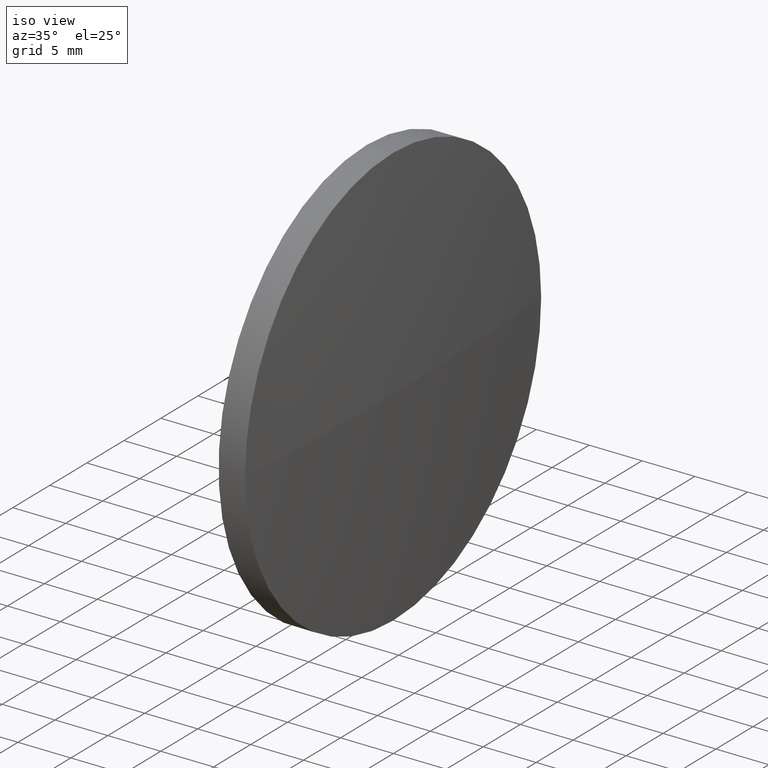
[diagram: clean part render]
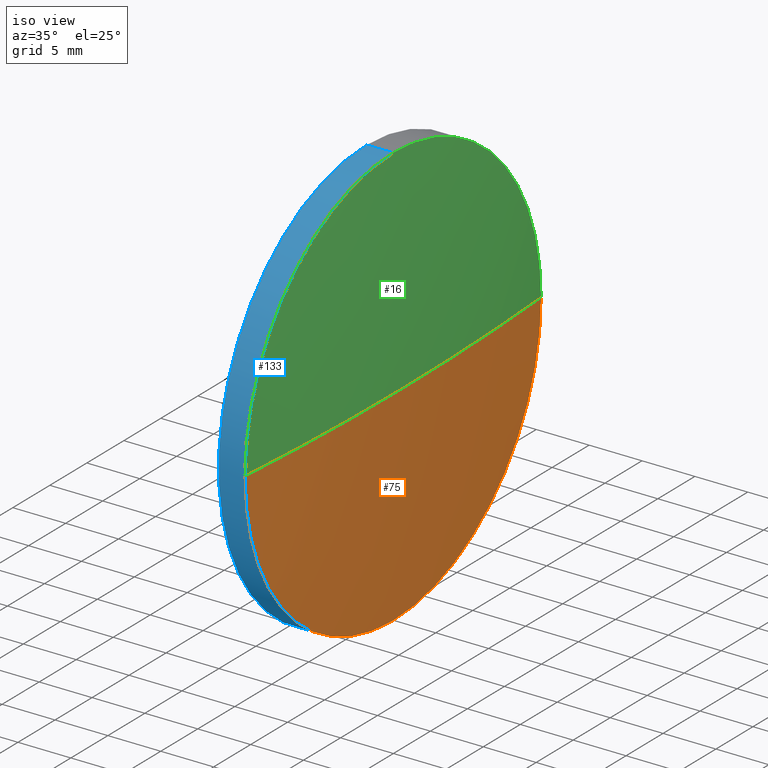
[diagram: same view with three faces highlighted in distinct colors, each labeled with its STEP entity id]
A machine part, iso view with three faces highlighted in distinct colors.
Their STEP definitions:

[orange] entity #75 — the highlighted spherical surface has radius 256.8 mm.
#3 = CARTESIAN_POINT ( 'NONE',  ( 176.0471157877914800, 108.4341461141712300, 0.0000000000000000000 ) ) ;
#8 = CIRCLE ( 'NONE', #140, 256.8002564102557700 ) ;
#18 = CARTESIAN_POINT ( 'NONE',  ( 432.0673721980472200, 108.4341461141712000, -20.00000000000000400 ) ) ;
#19 = ORIENTED_EDGE ( 'NONE', *, *, #62, .T. ) ;
#20 = DIRECTION ( 'NONE',  ( 0.0000000000000000000, -1.000000000000000000, 0.0000000000000000000 ) ) ;
#23 = EDGE_CURVE ( 'NONE', #141, #31, #8, .T. ) ;
#27 = VERTEX_POINT ( 'NONE', #18 ) ;
#31 = VERTEX_POINT ( 'NONE', #64 ) ;
#32 = CIRCLE ( 'NONE', #183, 256.8002564102557700 ) ;
#34 = DIRECTION ( 'NONE',  ( 0.0000000000000000000, 0.0000000000000000000, 1.000000000000000000 ) ) ;
#49 = ORIENTED_EDGE ( 'NONE', *, *, #115, .F. ) ;
#51 = DIRECTION ( 'NONE',  ( -1.000000000000000000, 0.0000000000000000000, 0.0000000000000000000 ) ) ;
#52 = DIRECTION ( 'NONE',  ( 0.0000000000000000000, -1.224646799147353200E-016, 1.000000000000000000 ) ) ;
#54 = EDGE_LOOP ( 'NONE', ( #122, #19, #49, #173 ) ) ;
#62 = EDGE_CURVE ( 'NONE', #141, #181, #32, .T. ) ;
#63 = CARTESIAN_POINT ( 'NONE',  ( 432.0673721980472200, 108.4341461141712000, 0.0000000000000000000 ) ) ;
#64 = CARTESIAN_POINT ( 'NONE',  ( 432.0673721980472200, 128.4341461141713700, 2.449293598294722300E-015 ) ) ;
#75 = ADVANCED_FACE ( 'NONE', ( #121 ), #92, .T. ) ;
#77 = CARTESIAN_POINT ( 'NONE',  ( 432.0673721980472200, 108.4341461141712000, 0.0000000000000000000 ) ) ;
#78 = DIRECTION ( 'NONE',  ( 0.0000000000000000000, 0.0000000000000000000, 1.000000000000000000 ) ) ;
#79 = CIRCLE ( 'NONE', #101, 20.00000000000000400 ) ;
#84 = EDGE_CURVE ( 'NONE', #31, #27, #134, .T. ) ;
#92 = SPHERICAL_SURFACE ( 'NONE', #98, 256.8002564102557700 ) ;
#94 = DIRECTION ( 'NONE',  ( -1.000000000000000000, -0.0000000000000000000, -0.0000000000000000000 ) ) ;
#98 = AXIS2_PLACEMENT_3D ( 'NONE', #153, #128, #20 ) ;
#101 = AXIS2_PLACEMENT_3D ( 'NONE', #77, #109, #34 ) ;
#108 = AXIS2_PLACEMENT_3D ( 'NONE', #63, #94, #78 ) ;
#109 = DIRECTION ( 'NONE',  ( -1.000000000000000000, -0.0000000000000000000, -0.0000000000000000000 ) ) ;
#115 = EDGE_CURVE ( 'NONE', #27, #181, #79, .T. ) ;
#121 = FACE_OUTER_BOUND ( 'NONE', #54, .T. ) ;
#122 = ORIENTED_EDGE ( 'NONE', *, *, #23, .F. ) ;
#128 = DIRECTION ( 'NONE',  ( 0.0000000000000000000, 0.0000000000000000000, 1.000000000000000000 ) ) ;
#134 = CIRCLE ( 'NONE', #108, 20.00000000000000400 ) ;
#140 = AXIS2_PLACEMENT_3D ( 'NONE', #162, #52, #178 ) ;
#141 = VERTEX_POINT ( 'NONE', #179 ) ;
#142 = CARTESIAN_POINT ( 'NONE',  ( 432.0673721980472200, 88.43414611417107100, 0.0000000000000000000 ) ) ;
#153 = CARTESIAN_POINT ( 'NONE',  ( 176.0471157877914800, 108.4341461141712300, 0.0000000000000000000 ) ) ;
#161 = DIRECTION ( 'NONE',  ( 0.0000000000000000000, 0.0000000000000000000, -1.000000000000000000 ) ) ;
#162 = CARTESIAN_POINT ( 'NONE',  ( 176.0471157877914800, 108.4341461141712300, 0.0000000000000000000 ) ) ;
#173 = ORIENTED_EDGE ( 'NONE', *, *, #84, .F. ) ;
#178 = DIRECTION ( 'NONE',  ( 0.0000000000000000000, -1.000000000000000000, -1.224646799147353200E-016 ) ) ;
#179 = CARTESIAN_POINT ( 'NONE',  ( 432.8473721980472500, 108.4341461141712100, 0.0000000000000000000 ) ) ;
#181 = VERTEX_POINT ( 'NONE', #142 ) ;
#183 = AXIS2_PLACEMENT_3D ( 'NONE', #3, #161, #51 ) ;

[blue] entity #133 — the highlighted cylindrical surface (partial cylindrical patch) has radius 20 mm, axis along (-1, -0, -0).
#1 = DIRECTION ( 'NONE',  ( 0.0000000000000000000, 0.0000000000000000000, 1.000000000000000000 ) ) ;
#13 = EDGE_CURVE ( 'NONE', #137, #184, #145, .T. ) ;
#17 = DIRECTION ( 'NONE',  ( -1.000000000000000000, -0.0000000000000000000, -0.0000000000000000000 ) ) ;
#18 = CARTESIAN_POINT ( 'NONE',  ( 432.0673721980472200, 108.4341461141712000, -20.00000000000000400 ) ) ;
#22 = FACE_OUTER_BOUND ( 'NONE', #76, .T. ) ;
#27 = VERTEX_POINT ( 'NONE', #18 ) ;
#30 = AXIS2_PLACEMENT_3D ( 'NONE', #176, #17, #1 ) ;
#34 = DIRECTION ( 'NONE',  ( 0.0000000000000000000, 0.0000000000000000000, 1.000000000000000000 ) ) ;
#38 = CARTESIAN_POINT ( 'NONE',  ( 429.5673721980472200, 108.4341461141712000, -20.00000000000000400 ) ) ;
#45 = LINE ( 'NONE', #138, #96 ) ;
#50 = CARTESIAN_POINT ( 'NONE',  ( 432.0673721980472200, 108.4341461141712000, 20.00000000000000400 ) ) ;
#53 = EDGE_CURVE ( 'NONE', #27, #113, #45, .T. ) ;
#60 = CIRCLE ( 'NONE', #166, 20.00000000000000400 ) ;
#61 = ORIENTED_EDGE ( 'NONE', *, *, #13, .T. ) ;
#65 = ORIENTED_EDGE ( 'NONE', *, *, #71, .T. ) ;
#66 = CARTESIAN_POINT ( 'NONE',  ( 429.5673721980472200, 108.4341461141712000, 0.0000000000000000000 ) ) ;
#69 = ORIENTED_EDGE ( 'NONE', *, *, #88, .F. ) ;
#70 = CARTESIAN_POINT ( 'NONE',  ( 425.6024185870612700, 108.4341461141712000, 20.00000000000000400 ) ) ;
#71 = EDGE_CURVE ( 'NONE', #181, #137, #170, .T. ) ;
#76 = EDGE_LOOP ( 'NONE', ( #177, #155, #65, #61, #69 ) ) ;
#77 = CARTESIAN_POINT ( 'NONE',  ( 432.0673721980472200, 108.4341461141712000, 0.0000000000000000000 ) ) ;
#79 = CIRCLE ( 'NONE', #101, 20.00000000000000400 ) ;
#88 = EDGE_CURVE ( 'NONE', #113, #184, #60, .T. ) ;
#90 = CARTESIAN_POINT ( 'NONE',  ( 432.0673721980472200, 108.4341461141712000, 0.0000000000000000000 ) ) ;
#91 = DIRECTION ( 'NONE',  ( -1.000000000000000000, -0.0000000000000000000, -0.0000000000000000000 ) ) ;
#95 = DIRECTION ( 'NONE',  ( 0.0000000000000000000, 0.0000000000000000000, 1.000000000000000000 ) ) ;
#96 = VECTOR ( 'NONE', #123, 1000.000000000000000 ) ;
#101 = AXIS2_PLACEMENT_3D ( 'NONE', #77, #109, #34 ) ;
#109 = DIRECTION ( 'NONE',  ( -1.000000000000000000, -0.0000000000000000000, -0.0000000000000000000 ) ) ;
#113 = VERTEX_POINT ( 'NONE', #38 ) ;
#114 = AXIS2_PLACEMENT_3D ( 'NONE', #90, #125, #152 ) ;
#115 = EDGE_CURVE ( 'NONE', #27, #181, #79, .T. ) ;
#123 = DIRECTION ( 'NONE',  ( -1.000000000000000000, -0.0000000000000000000, -0.0000000000000000000 ) ) ;
#125 = DIRECTION ( 'NONE',  ( -1.000000000000000000, -0.0000000000000000000, -0.0000000000000000000 ) ) ;
#127 = VECTOR ( 'NONE', #167, 1000.000000000000000 ) ;
#133 = ADVANCED_FACE ( 'NONE', ( #22 ), #150, .T. ) ;
#137 = VERTEX_POINT ( 'NONE', #50 ) ;
#138 = CARTESIAN_POINT ( 'NONE',  ( 425.6024185870612700, 108.4341461141712000, -20.00000000000000400 ) ) ;
#142 = CARTESIAN_POINT ( 'NONE',  ( 432.0673721980472200, 88.43414611417107100, 0.0000000000000000000 ) ) ;
#145 = LINE ( 'NONE', #70, #127 ) ;
#150 = CYLINDRICAL_SURFACE ( 'NONE', #30, 20.00000000000000400 ) ;
#152 = DIRECTION ( 'NONE',  ( 0.0000000000000000000, 0.0000000000000000000, 1.000000000000000000 ) ) ;
#154 = CARTESIAN_POINT ( 'NONE',  ( 429.5673721980472200, 108.4341461141712000, 20.00000000000000400 ) ) ;
#155 = ORIENTED_EDGE ( 'NONE', *, *, #115, .T. ) ;
#166 = AXIS2_PLACEMENT_3D ( 'NONE', #66, #91, #95 ) ;
#167 = DIRECTION ( 'NONE',  ( -1.000000000000000000, -0.0000000000000000000, -0.0000000000000000000 ) ) ;
#170 = CIRCLE ( 'NONE', #114, 20.00000000000000400 ) ;
#176 = CARTESIAN_POINT ( 'NONE',  ( 425.6024185870612700, 108.4341461141712000, 0.0000000000000000000 ) ) ;
#177 = ORIENTED_EDGE ( 'NONE', *, *, #53, .F. ) ;
#181 = VERTEX_POINT ( 'NONE', #142 ) ;
#184 = VERTEX_POINT ( 'NONE', #154 ) ;

[green] entity #16 — the highlighted spherical surface has radius 256.8 mm.
#3 = CARTESIAN_POINT ( 'NONE',  ( 176.0471157877914800, 108.4341461141712300, 0.0000000000000000000 ) ) ;
#8 = CIRCLE ( 'NONE', #140, 256.8002564102557700 ) ;
#10 = ORIENTED_EDGE ( 'NONE', *, *, #28, .F. ) ;
#15 = EDGE_LOOP ( 'NONE', ( #99, #159, #10, #104 ) ) ;
#16 = ADVANCED_FACE ( 'NONE', ( #106 ), #80, .T. ) ;
#21 = DIRECTION ( 'NONE',  ( 0.0000000000000000000, 0.0000000000000000000, 1.000000000000000000 ) ) ;
#23 = EDGE_CURVE ( 'NONE', #141, #31, #8, .T. ) ;
#28 = EDGE_CURVE ( 'NONE', #137, #31, #148, .T. ) ;
#31 = VERTEX_POINT ( 'NONE', #64 ) ;
#32 = CIRCLE ( 'NONE', #183, 256.8002564102557700 ) ;
#35 = DIRECTION ( 'NONE',  ( 0.0000000000000000000, -1.000000000000000000, 0.0000000000000000000 ) ) ;
#36 = DIRECTION ( 'NONE',  ( 0.0000000000000000000, 0.0000000000000000000, 1.000000000000000000 ) ) ;
#40 = AXIS2_PLACEMENT_3D ( 'NONE', #81, #164, #36 ) ;
#50 = CARTESIAN_POINT ( 'NONE',  ( 432.0673721980472200, 108.4341461141712000, 20.00000000000000400 ) ) ;
#51 = DIRECTION ( 'NONE',  ( -1.000000000000000000, 0.0000000000000000000, 0.0000000000000000000 ) ) ;
#52 = DIRECTION ( 'NONE',  ( 0.0000000000000000000, -1.224646799147353200E-016, 1.000000000000000000 ) ) ;
#62 = EDGE_CURVE ( 'NONE', #141, #181, #32, .T. ) ;
#64 = CARTESIAN_POINT ( 'NONE',  ( 432.0673721980472200, 128.4341461141713700, 2.449293598294722300E-015 ) ) ;
#71 = EDGE_CURVE ( 'NONE', #181, #137, #170, .T. ) ;
#80 = SPHERICAL_SURFACE ( 'NONE', #174, 256.8002564102557700 ) ;
#81 = CARTESIAN_POINT ( 'NONE',  ( 432.0673721980472200, 108.4341461141712000, 0.0000000000000000000 ) ) ;
#90 = CARTESIAN_POINT ( 'NONE',  ( 432.0673721980472200, 108.4341461141712000, 0.0000000000000000000 ) ) ;
#99 = ORIENTED_EDGE ( 'NONE', *, *, #62, .F. ) ;
#104 = ORIENTED_EDGE ( 'NONE', *, *, #71, .F. ) ;
#106 = FACE_OUTER_BOUND ( 'NONE', #15, .T. ) ;
#111 = CARTESIAN_POINT ( 'NONE',  ( 176.0471157877914800, 108.4341461141712300, 0.0000000000000000000 ) ) ;
#114 = AXIS2_PLACEMENT_3D ( 'NONE', #90, #125, #152 ) ;
#125 = DIRECTION ( 'NONE',  ( -1.000000000000000000, -0.0000000000000000000, -0.0000000000000000000 ) ) ;
#137 = VERTEX_POINT ( 'NONE', #50 ) ;
#140 = AXIS2_PLACEMENT_3D ( 'NONE', #162, #52, #178 ) ;
#141 = VERTEX_POINT ( 'NONE', #179 ) ;
#142 = CARTESIAN_POINT ( 'NONE',  ( 432.0673721980472200, 88.43414611417107100, 0.0000000000000000000 ) ) ;
#148 = CIRCLE ( 'NONE', #40, 20.00000000000000400 ) ;
#152 = DIRECTION ( 'NONE',  ( 0.0000000000000000000, 0.0000000000000000000, 1.000000000000000000 ) ) ;
#159 = ORIENTED_EDGE ( 'NONE', *, *, #23, .T. ) ;
#161 = DIRECTION ( 'NONE',  ( 0.0000000000000000000, 0.0000000000000000000, -1.000000000000000000 ) ) ;
#162 = CARTESIAN_POINT ( 'NONE',  ( 176.0471157877914800, 108.4341461141712300, 0.0000000000000000000 ) ) ;
#164 = DIRECTION ( 'NONE',  ( -1.000000000000000000, -0.0000000000000000000, -0.0000000000000000000 ) ) ;
#170 = CIRCLE ( 'NONE', #114, 20.00000000000000400 ) ;
#174 = AXIS2_PLACEMENT_3D ( 'NONE', #111, #21, #35 ) ;
#178 = DIRECTION ( 'NONE',  ( 0.0000000000000000000, -1.000000000000000000, -1.224646799147353200E-016 ) ) ;
#179 = CARTESIAN_POINT ( 'NONE',  ( 432.8473721980472500, 108.4341461141712100, 0.0000000000000000000 ) ) ;
#181 = VERTEX_POINT ( 'NONE', #142 ) ;
#183 = AXIS2_PLACEMENT_3D ( 'NONE', #3, #161, #51 ) ;